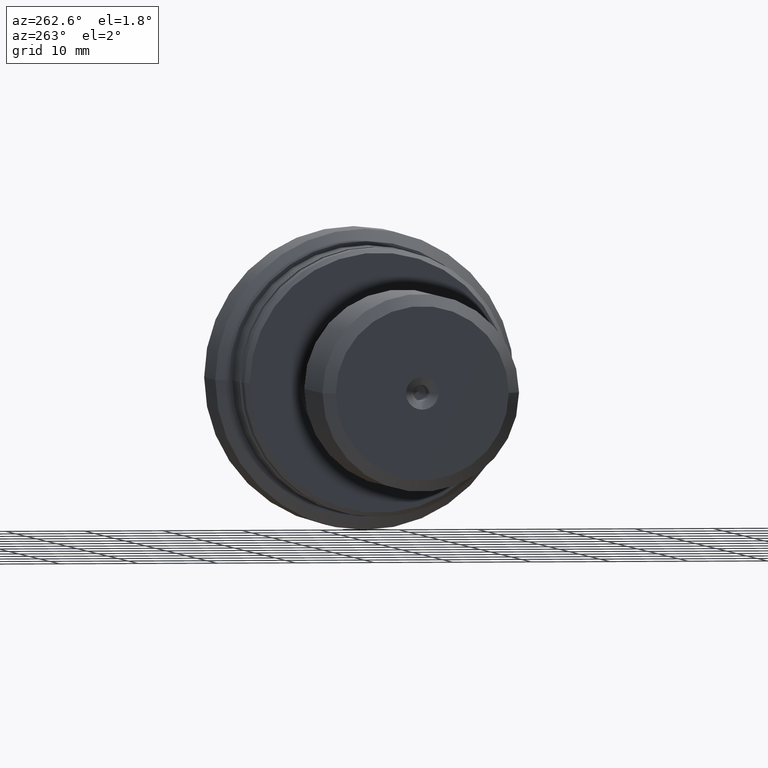
[diagram: clean part render]
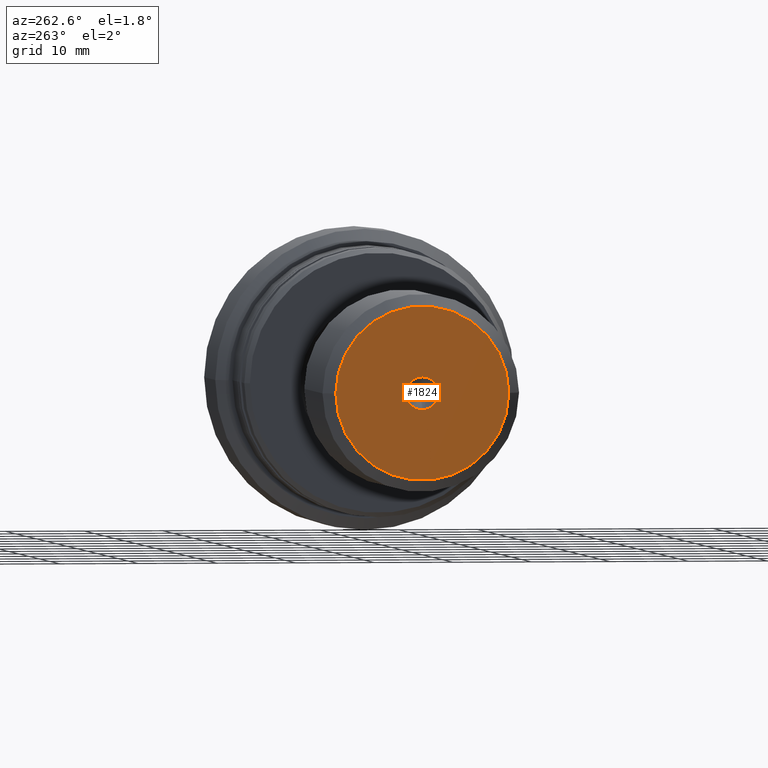
[diagram: same view with one face highlighted and labeled with its STEP entity id]
A machine part, auxiliary view. The second image highlights one B-rep face of the part: STEP entity #1824.
In plain terms, the highlighted planar face has unit normal (-1, -0, 0).
Its self-contained STEP definition (entity closure, byte-faithful):
#8 = ORIENTED_EDGE ( 'NONE', *, *, #1026, .T. ) ;
#53 = DIRECTION ( 'NONE',  ( -1.000000000000000000, -1.069542322069065801E-17, -0.000000000000000000 ) ) ;
#227 = CARTESIAN_POINT ( 'NONE',  ( 6.147309118172456842E-16, 0.000000000000000000, 0.000000000000000000 ) ) ;
#373 = CARTESIAN_POINT ( 'NONE',  ( 6.147309118172456842E-16, 2.541142108230793077E-16, -2.075000000000028155 ) ) ;
#490 = DIRECTION ( 'NONE',  ( 1.069542322069064722E-17, -1.000000000000000000, 0.000000000000000000 ) ) ;
#534 = DIRECTION ( 'NONE',  ( 1.069542322069064722E-17, -1.000000000000000000, 0.000000000000000000 ) ) ;
#588 = DIRECTION ( 'NONE',  ( -1.000000000000000000, -1.069542322069065801E-17, 0.000000000000000000 ) ) ;
#592 = AXIS2_PLACEMENT_3D ( 'NONE', #227, #1785, #534 ) ;
#606 = VERTEX_POINT ( 'NONE', #1321 ) ;
#620 = CARTESIAN_POINT ( 'NONE',  ( 1.111812168206894135E-15, 11.00000000000000178, 0.000000000000000000 ) ) ;
#693 = EDGE_CURVE ( 'NONE', #606, #1359, #1388, .T. ) ;
#727 = EDGE_CURVE ( 'NONE', #815, #1272, #878, .T. ) ;
#760 = FACE_BOUND ( 'NONE', #1094, .T. ) ;
#815 = VERTEX_POINT ( 'NONE', #620 ) ;
#828 = DIRECTION ( 'NONE',  ( -1.000000000000000000, -1.069542322069065801E-17, -0.000000000000000000 ) ) ;
#878 = CIRCLE ( 'NONE', #1230, 11.00000000000000178 ) ;
#943 = CARTESIAN_POINT ( 'NONE',  ( 1.347111479062088602E-15, -11.00000000000000178, 1.438959988998140160E-15 ) ) ;
#1026 = EDGE_CURVE ( 'NONE', #1272, #815, #2107, .T. ) ;
#1064 = ORIENTED_EDGE ( 'NONE', *, *, #727, .T. ) ;
#1094 = EDGE_LOOP ( 'NONE', ( #1584, #1275 ) ) ;
#1099 = EDGE_CURVE ( 'NONE', #1359, #606, #2346, .T. ) ;
#1230 = AXIS2_PLACEMENT_3D ( 'NONE', #1950, #828, #2302 ) ;
#1270 = AXIS2_PLACEMENT_3D ( 'NONE', #2406, #1631, #490 ) ;
#1272 = VERTEX_POINT ( 'NONE', #943 ) ;
#1275 = ORIENTED_EDGE ( 'NONE', *, *, #1099, .T. ) ;
#1313 = FACE_OUTER_BOUND ( 'NONE', #1869, .T. ) ;
#1321 = CARTESIAN_POINT ( 'NONE',  ( 6.147309118172456842E-16, 0.000000000000000000, 2.075000000000028155 ) ) ;
#1359 = VERTEX_POINT ( 'NONE', #373 ) ;
#1388 = CIRCLE ( 'NONE', #592, 2.075000000000028155 ) ;
#1519 = DIRECTION ( 'NONE',  ( 1.069542322069065801E-17, -1.000000000000000000, 0.000000000000000000 ) ) ;
#1547 = DIRECTION ( 'NONE',  ( 1.069542322069065647E-17, -1.000000000000000000, 0.000000000000000000 ) ) ;
#1582 = CARTESIAN_POINT ( 'NONE',  ( 1.229461823634491368E-15, 1.314961453745302249E-32, 0.000000000000000000 ) ) ;
#1584 = ORIENTED_EDGE ( 'NONE', *, *, #693, .T. ) ;
#1631 = DIRECTION ( 'NONE',  ( 1.000000000000000000, 1.069542322069065801E-17, 0.000000000000000000 ) ) ;
#1683 = PLANE ( 'NONE',  #2341 ) ;
#1785 = DIRECTION ( 'NONE',  ( 1.000000000000000000, 1.069542322069065801E-17, 0.000000000000000000 ) ) ;
#1824 = ADVANCED_FACE ( 'NONE', ( #760, #1313 ), #1683, .T. ) ;
#1869 = EDGE_LOOP ( 'NONE', ( #1064, #8 ) ) ;
#1877 = AXIS2_PLACEMENT_3D ( 'NONE', #1582, #53, #1547 ) ;
#1950 = CARTESIAN_POINT ( 'NONE',  ( 1.229461823634491368E-15, 1.314961453745302249E-32, 0.000000000000000000 ) ) ;
#2071 = CARTESIAN_POINT ( 'NONE',  ( 6.147309118172456842E-16, 6.574807268726511244E-33, 0.000000000000000000 ) ) ;
#2107 = CIRCLE ( 'NONE', #1877, 11.00000000000000178 ) ;
#2302 = DIRECTION ( 'NONE',  ( 1.069542322069065647E-17, -1.000000000000000000, 0.000000000000000000 ) ) ;
#2341 = AXIS2_PLACEMENT_3D ( 'NONE', #2071, #588, #1519 ) ;
#2346 = CIRCLE ( 'NONE', #1270, 2.075000000000028155 ) ;
#2406 = CARTESIAN_POINT ( 'NONE',  ( 6.147309118172456842E-16, 0.000000000000000000, 0.000000000000000000 ) ) ;